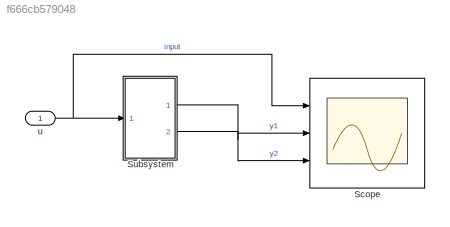
MODEL slx_f666cb579048
KIND model
CONFIG AbsTol = auto
CONFIG EnableMultiTasking = off
CONFIG FixedStep = auto
CONFIG MaxStep = auto
CONFIG MinStep = auto
CONFIG RelTol = 1e-3
CONFIG SampleTimeConstraint = Unconstrained
CONFIG SolverName = VariableStepAuto
CONFIG StartTime = 0.0
CONFIG StopTime = 100.0
BLOCK [Scope] Scope
  Floating = off
  NumInputPorts = 3
  Ports = [3]
  ScopeSpecificationString = Simulink.scopes.TimeScopeBlockCfg('CurrentConfiguration', extmgr.ConfigurationSet(extmgr.Configuration('Core','General UI',true),extmgr.Configuration('Core','Source UI',true),extmgr.Configuration('Sources','WiredSimulink',true),extmgr.Configuration('Visuals','Time Domain',true,'SerializedDisplays',{struct('MinYLimReal','-0.125','MaxYLimReal','1.125','YLabelReal','','MinYLimMag','0.00000','MaxYLimM...<+2708ch>
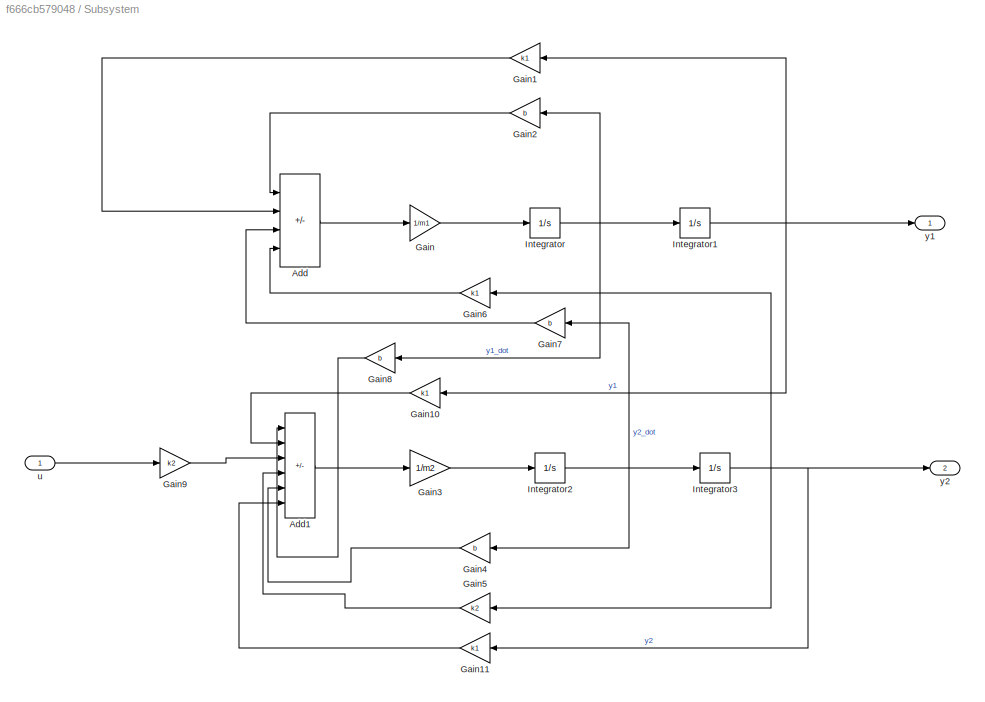
BLOCK [SubSystem] Subsystem
  Ports = [1, 2]
  RequestExecContextInheritance = off
BLOCK [Sum] Subsystem/Add
  IconShape = rectangular
  Inputs = --++
  Ports = [4, 1]
BLOCK [Sum] Subsystem/Add1
  IconShape = rectangular
  Inputs = +++---
  Ports = [6, 1]
BLOCK [Gain] Subsystem/Gain
  Gain = 1/m1
BLOCK [Gain] Subsystem/Gain1
  Gain = k1
BLOCK [Gain] Subsystem/Gain10
  Gain = k1
BLOCK [Gain] Subsystem/Gain11
  Gain = k1
BLOCK [Gain] Subsystem/Gain2
  Gain = b
BLOCK [Gain] Subsystem/Gain3
  Gain = 1/m2
BLOCK [Gain] Subsystem/Gain4
  Gain = b
BLOCK [Gain] Subsystem/Gain5
  Gain = k2
BLOCK [Gain] Subsystem/Gain6
  Gain = k1
BLOCK [Gain] Subsystem/Gain7
  Gain = b
BLOCK [Gain] Subsystem/Gain8
  Gain = b
BLOCK [Gain] Subsystem/Gain9
  Gain = k2
BLOCK [Integrator] Subsystem/Integrator
  Ports = [1, 1]
BLOCK [Integrator] Subsystem/Integrator1
  Ports = [1, 1]
BLOCK [Integrator] Subsystem/Integrator2
  Ports = [1, 1]
BLOCK [Integrator] Subsystem/Integrator3
  Ports = [1, 1]
BLOCK [Inport] Subsystem/u
BLOCK [Outport] Subsystem/y1
BLOCK [Outport] Subsystem/y2
  Port = 2
BLOCK [Inport] u
LINE Subsystem/Add1:1 -> Subsystem/Gain3:1
LINE Subsystem/Add:1 -> Subsystem/Gain:1
LINE Subsystem/Gain10:1 -> Subsystem/Add1:2
LINE Subsystem/Gain11:1 -> Subsystem/Add1:6
LINE Subsystem/Gain1:1 -> Subsystem/Add:2
LINE Subsystem/Gain2:1 -> Subsystem/Add:1
LINE Subsystem/Gain3:1 -> Subsystem/Integrator2:1
LINE Subsystem/Gain4:1 -> Subsystem/Add1:5
LINE Subsystem/Gain5:1 -> Subsystem/Add1:4
LINE Subsystem/Gain6:1 -> Subsystem/Add:4
LINE Subsystem/Gain7:1 -> Subsystem/Add:3
LINE Subsystem/Gain8:1 -> Subsystem/Add1:1
LINE Subsystem/Gain9:1 -> Subsystem/Add1:3
LINE Subsystem/Gain:1 -> Subsystem/Integrator:1
NET Subsystem/Integrator1:1 -> Subsystem/Gain10:1, Subsystem/Gain1:1, Subsystem/y1:1
NET Subsystem/Integrator2:1 -> Subsystem/Gain4:1, Subsystem/Gain7:1, Subsystem/Integrator3:1
NET Subsystem/Integrator3:1 -> Subsystem/Gain11:1, Subsystem/Gain5:1, Subsystem/Gain6:1, Subsystem/y2:1
NET Subsystem/Integrator:1 -> Subsystem/Gain2:1, Subsystem/Gain8:1, Subsystem/Integrator1:1
LINE Subsystem/u:1 -> Subsystem/Gain9:1
LINE Subsystem:1 -> Scope:2
LINE Subsystem:2 -> Scope:3
NET u:1 -> Scope:1, Subsystem:1
note: NET lines group one-source signal fan-out (src -> all destinations, sorted); 1:1 wires keep LINE
